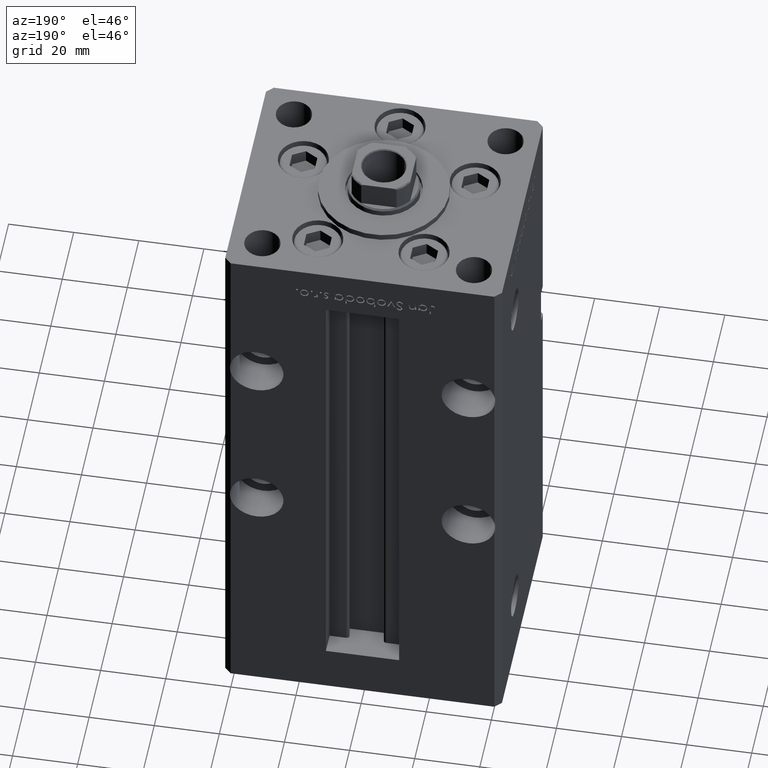
[diagram: clean part render]
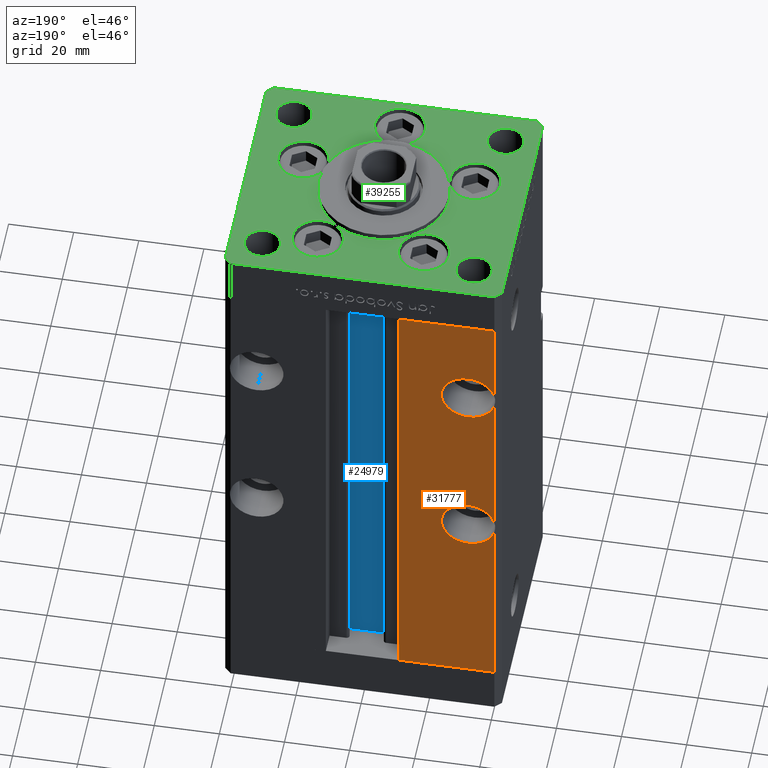
[diagram: same view with three faces highlighted in distinct colors, each labeled with its STEP entity id]
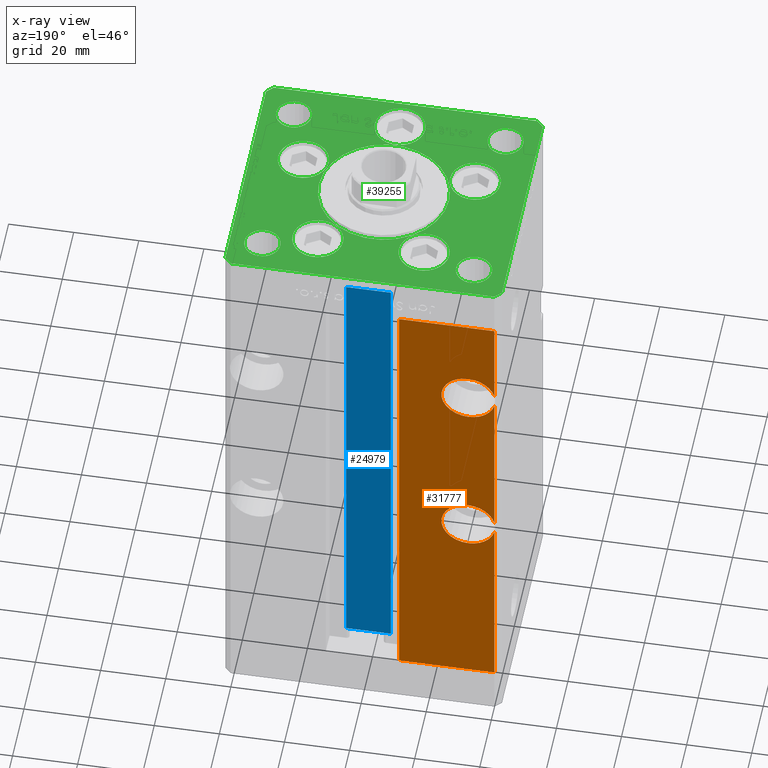
[diagram: x-ray of the same camera — body ghosted, the three highlighted faces saturated]
A machine part, auxiliary view with three faces highlighted in distinct colors.
The next image is the same camera in x-ray (body ghosted, the three faces saturated) — at least one of them is partly hidden behind the body in this view.
Their STEP definitions:

[orange] entity #31777 — the highlighted planar face has unit normal (0, -1, 0).
#46 = EDGE_CURVE ( 'NONE', #51204, #11577, #9133, .T. ) ;
#246 = DIRECTION ( 'NONE',  ( 0.000000000000000000, 1.000000000000000000, -0.000000000000000000 ) ) ;
#531 = CARTESIAN_POINT ( 'NONE',  ( -40.50000000000000711, 37.50000000000000000, 148.5000000000000000 ) ) ;
#666 = CARTESIAN_POINT ( 'NONE',  ( -40.50000000000000711, 37.50000000000000000, 148.5000000000000000 ) ) ;
#714 = DIRECTION ( 'NONE',  ( 0.000000000000000000, 0.000000000000000000, -1.000000000000000000 ) ) ;
#1833 = CARTESIAN_POINT ( 'NONE',  ( -11.24999999999999822, 37.50000000000000000, 148.5000000000000000 ) ) ;
#2019 = CARTESIAN_POINT ( 'NONE',  ( -32.50000000000000000, 37.50000000000000000, 54.75000000000000000 ) ) ;
#2843 = AXIS2_PLACEMENT_3D ( 'NONE', #10056, #42859, #51468 ) ;
#3202 = LINE ( 'NONE', #19625, #5698 ) ;
#4731 = DIRECTION ( 'NONE',  ( 0.000000000000000000, 1.000000000000000000, -0.000000000000000000 ) ) ;
#4918 = AXIS2_PLACEMENT_3D ( 'NONE', #33041, #246, #13138 ) ;
#5417 = EDGE_CURVE ( 'NONE', #24677, #11986, #12433, .T. ) ;
#5698 = VECTOR ( 'NONE', #36017, 1000.000000000000000 ) ;
#6661 = VERTEX_POINT ( 'NONE', #50525 ) ;
#6706 = AXIS2_PLACEMENT_3D ( 'NONE', #16376, #20418, #40299 ) ;
#7335 = VERTEX_POINT ( 'NONE', #2019 ) ;
#8038 = EDGE_CURVE ( 'NONE', #51204, #11986, #3202, .T. ) ;
#8677 = ORIENTED_EDGE ( 'NONE', *, *, #46, .T. ) ;
#8989 = LINE ( 'NONE', #666, #21336 ) ;
#9133 = LINE ( 'NONE', #43800, #37344 ) ;
#9165 = EDGE_CURVE ( 'NONE', #44308, #6661, #34066, .T. ) ;
#10056 = CARTESIAN_POINT ( 'NONE',  ( -32.50000000000000000, 37.50000000000000000, 63.00000000000000000 ) ) ;
#10524 = CARTESIAN_POINT ( 'NONE',  ( -32.50000000000000000, 37.50000000000000000, 63.00000000000000000 ) ) ;
#11577 = VERTEX_POINT ( 'NONE', #20242 ) ;
#11986 = VERTEX_POINT ( 'NONE', #1833 ) ;
#12433 = LINE ( 'NONE', #31803, #39150 ) ;
#13025 = EDGE_CURVE ( 'NONE', #6661, #26795, #21306, .T. ) ;
#13138 = DIRECTION ( 'NONE',  ( 0.000000000000000000, 0.000000000000000000, -1.000000000000000000 ) ) ;
#13165 = DIRECTION ( 'NONE',  ( -0.000000000000000000, -0.000000000000000000, -1.000000000000000000 ) ) ;
#14041 = DIRECTION ( 'NONE',  ( 0.000000000000000000, -1.000000000000000000, 0.000000000000000000 ) ) ;
#15024 = ORIENTED_EDGE ( 'NONE', *, *, #44463, .F. ) ;
#15213 = VERTEX_POINT ( 'NONE', #37541 ) ;
#15315 = DIRECTION ( 'NONE',  ( 0.000000000000000000, 0.000000000000000000, 1.000000000000000000 ) ) ;
#15840 = EDGE_CURVE ( 'NONE', #21188, #11577, #34224, .T. ) ;
#16376 = CARTESIAN_POINT ( 'NONE',  ( -32.50000000000000000, 37.50000000000000000, 118.0000000000000000 ) ) ;
#16639 = ORIENTED_EDGE ( 'NONE', *, *, #52894, .F. ) ;
#18877 = CARTESIAN_POINT ( 'NONE',  ( -32.50000000000000000, 37.50000000000000000, 71.25000000000001421 ) ) ;
#18896 = DIRECTION ( 'NONE',  ( 0.000000000000000000, -0.000000000000000000, -1.000000000000000000 ) ) ;
#19625 = CARTESIAN_POINT ( 'NONE',  ( -11.24999999999999822, 37.50000000000000000, 0.000000000000000000 ) ) ;
#20177 = VECTOR ( 'NONE', #13165, 1000.000000000000000 ) ;
#20242 = CARTESIAN_POINT ( 'NONE',  ( -40.50000000000000711, 37.50000000000000000, 0.000000000000000000 ) ) ;
#20418 = DIRECTION ( 'NONE',  ( 0.000000000000000000, 1.000000000000000000, -0.000000000000000000 ) ) ;
#21188 = VERTEX_POINT ( 'NONE', #29022 ) ;
#21210 = CARTESIAN_POINT ( 'NONE',  ( -40.50000000000000711, 37.50000000000000000, 115.9844355629253840 ) ) ;
#21306 = CIRCLE ( 'NONE', #6706, 8.250000000000007105 ) ;
#21336 = VECTOR ( 'NONE', #49865, 1000.000000000000000 ) ;
#22130 = CIRCLE ( 'NONE', #4918, 8.250000000000007105 ) ;
#22524 = CIRCLE ( 'NONE', #38814, 8.250000000000007105 ) ;
#22942 = CARTESIAN_POINT ( 'NONE',  ( -40.50000000000000711, 37.50000000000000000, 148.5000000000000000 ) ) ;
#23400 = EDGE_CURVE ( 'NONE', #15213, #48276, #37793, .T. ) ;
#23901 = DIRECTION ( 'NONE',  ( -1.000000000000000000, 0.000000000000000000, 0.000000000000000000 ) ) ;
#24677 = VERTEX_POINT ( 'NONE', #28452 ) ;
#25105 = EDGE_CURVE ( 'NONE', #26795, #15213, #8989, .T. ) ;
#26033 = CIRCLE ( 'NONE', #2843, 8.250000000000007105 ) ;
#26387 = DIRECTION ( 'NONE',  ( 0.000000000000000000, 1.000000000000000000, 0.000000000000000000 ) ) ;
#26772 = EDGE_CURVE ( 'NONE', #38711, #44308, #22130, .T. ) ;
#26795 = VERTEX_POINT ( 'NONE', #21210 ) ;
#27969 = ORIENTED_EDGE ( 'NONE', *, *, #23400, .F. ) ;
#28452 = CARTESIAN_POINT ( 'NONE',  ( -40.50000000000000711, 37.50000000000000000, 148.5000000000000000 ) ) ;
#29022 = CARTESIAN_POINT ( 'NONE',  ( -40.50000000000000711, 37.50000000000000000, 60.98443556292539114 ) ) ;
#29327 = CARTESIAN_POINT ( 'NONE',  ( -32.50000000000000000, 37.50000000000000000, 126.2500000000000000 ) ) ;
#30702 = CARTESIAN_POINT ( 'NONE',  ( -11.24999999999999822, 37.50000000000000000, 148.5000000000000000 ) ) ;
#31183 = DIRECTION ( 'NONE',  ( 0.000000000000000000, 1.000000000000000000, 0.000000000000000000 ) ) ;
#31777 = ADVANCED_FACE ( 'NONE', ( #50872 ), #51928, .F. ) ;
#31803 = CARTESIAN_POINT ( 'NONE',  ( -11.24999999999999822, 37.50000000000000000, 148.5000000000000000 ) ) ;
#33041 = CARTESIAN_POINT ( 'NONE',  ( -32.50000000000000000, 37.50000000000000000, 118.0000000000000000 ) ) ;
#33197 = ORIENTED_EDGE ( 'NONE', *, *, #5417, .T. ) ;
#34066 = CIRCLE ( 'NONE', #40060, 8.250000000000007105 ) ;
#34224 = LINE ( 'NONE', #22942, #47174 ) ;
#34922 = ORIENTED_EDGE ( 'NONE', *, *, #26772, .F. ) ;
#36017 = DIRECTION ( 'NONE',  ( -0.000000000000000000, -0.000000000000000000, 1.000000000000000000 ) ) ;
#37344 = VECTOR ( 'NONE', #23901, 1000.000000000000000 ) ;
#37541 = CARTESIAN_POINT ( 'NONE',  ( -40.50000000000000711, 37.50000000000000000, 65.01556443707461597 ) ) ;
#37793 = CIRCLE ( 'NONE', #39526, 8.250000000000007105 ) ;
#38711 = VERTEX_POINT ( 'NONE', #48286 ) ;
#38814 = AXIS2_PLACEMENT_3D ( 'NONE', #48106, #31183, #15315 ) ;
#39150 = VECTOR ( 'NONE', #43897, 1000.000000000000000 ) ;
#39526 = AXIS2_PLACEMENT_3D ( 'NONE', #10524, #26387, #42774 ) ;
#39842 = ORIENTED_EDGE ( 'NONE', *, *, #13025, .F. ) ;
#40060 = AXIS2_PLACEMENT_3D ( 'NONE', #49117, #4731, #714 ) ;
#40299 = DIRECTION ( 'NONE',  ( 0.000000000000000000, 0.000000000000000000, -1.000000000000000000 ) ) ;
#40320 = CARTESIAN_POINT ( 'NONE',  ( -11.24999999999999822, 37.50000000000000000, 0.000000000000000000 ) ) ;
#41660 = LINE ( 'NONE', #531, #20177 ) ;
#42774 = DIRECTION ( 'NONE',  ( 0.000000000000000000, 0.000000000000000000, 1.000000000000000000 ) ) ;
#42859 = DIRECTION ( 'NONE',  ( 0.000000000000000000, 1.000000000000000000, 0.000000000000000000 ) ) ;
#43800 = CARTESIAN_POINT ( 'NONE',  ( -11.24999999999999822, 37.50000000000000000, 0.000000000000000000 ) ) ;
#43897 = DIRECTION ( 'NONE',  ( 1.000000000000000000, 0.000000000000000000, 0.000000000000000000 ) ) ;
#44308 = VERTEX_POINT ( 'NONE', #29327 ) ;
#44463 = EDGE_CURVE ( 'NONE', #7335, #21188, #22524, .T. ) ;
#44714 = ORIENTED_EDGE ( 'NONE', *, *, #25105, .F. ) ;
#45689 = ORIENTED_EDGE ( 'NONE', *, *, #8038, .F. ) ;
#47174 = VECTOR ( 'NONE', #51700, 1000.000000000000000 ) ;
#47569 = EDGE_LOOP ( 'NONE', ( #44714, #39842, #48673, #34922, #16639, #33197, #45689, #8677, #50925, #15024, #52550, #27969 ) ) ;
#48106 = CARTESIAN_POINT ( 'NONE',  ( -32.50000000000000000, 37.50000000000000000, 63.00000000000000000 ) ) ;
#48276 = VERTEX_POINT ( 'NONE', #18877 ) ;
#48286 = CARTESIAN_POINT ( 'NONE',  ( -40.50000000000000711, 37.50000000000000000, 120.0155644370746018 ) ) ;
#48673 = ORIENTED_EDGE ( 'NONE', *, *, #9165, .F. ) ;
#48902 = EDGE_CURVE ( 'NONE', #48276, #7335, #26033, .T. ) ;
#49117 = CARTESIAN_POINT ( 'NONE',  ( -32.50000000000000000, 37.50000000000000000, 118.0000000000000000 ) ) ;
#49865 = DIRECTION ( 'NONE',  ( -0.000000000000000000, -0.000000000000000000, -1.000000000000000000 ) ) ;
#50525 = CARTESIAN_POINT ( 'NONE',  ( -32.50000000000000000, 37.50000000000000000, 109.7499999999999858 ) ) ;
#50872 = FACE_OUTER_BOUND ( 'NONE', #47569, .T. ) ;
#50925 = ORIENTED_EDGE ( 'NONE', *, *, #15840, .F. ) ;
#51204 = VERTEX_POINT ( 'NONE', #40320 ) ;
#51468 = DIRECTION ( 'NONE',  ( 0.000000000000000000, 0.000000000000000000, 1.000000000000000000 ) ) ;
#51700 = DIRECTION ( 'NONE',  ( -0.000000000000000000, -0.000000000000000000, -1.000000000000000000 ) ) ;
#51928 = PLANE ( 'NONE',  #52276 ) ;
#52276 = AXIS2_PLACEMENT_3D ( 'NONE', #30702, #14041, #18896 ) ;
#52550 = ORIENTED_EDGE ( 'NONE', *, *, #48902, .F. ) ;
#52894 = EDGE_CURVE ( 'NONE', #24677, #38711, #41660, .T. ) ;

[blue] entity #24979 — the highlighted planar face has unit normal (0, -1, 0).
#9 = CARTESIAN_POINT ( 'NONE',  ( 6.876153656360465938, 26.99999999999986855, 148.5000000000000000 ) ) ;
#5331 = VECTOR ( 'NONE', #11118, 1000.000000000000000 ) ;
#5333 = CARTESIAN_POINT ( 'NONE',  ( -6.876153656360465938, 26.99999999999986855, 148.5000000000000000 ) ) ;
#5457 = DIRECTION ( 'NONE',  ( 1.000000000000000000, -0.000000000000000000, -0.000000000000000000 ) ) ;
#5744 = VERTEX_POINT ( 'NONE', #9 ) ;
#5973 = EDGE_LOOP ( 'NONE', ( #11909, #11796, #50272, #10671 ) ) ;
#10671 = ORIENTED_EDGE ( 'NONE', *, *, #23046, .F. ) ;
#10858 = LINE ( 'NONE', #24227, #5331 ) ;
#11118 = DIRECTION ( 'NONE',  ( -0.000000000000000000, -0.000000000000000000, 1.000000000000000000 ) ) ;
#11796 = ORIENTED_EDGE ( 'NONE', *, *, #21057, .F. ) ;
#11909 = ORIENTED_EDGE ( 'NONE', *, *, #24004, .F. ) ;
#12388 = CARTESIAN_POINT ( 'NONE',  ( 0.000000000000000000, 26.99999999999986855, 148.5000000000000000 ) ) ;
#12487 = CARTESIAN_POINT ( 'NONE',  ( 6.876153656360465938, 26.99999999999986855, 0.000000000000000000 ) ) ;
#13243 = VERTEX_POINT ( 'NONE', #45656 ) ;
#13769 = VECTOR ( 'NONE', #40358, 1000.000000000000000 ) ;
#16289 = CARTESIAN_POINT ( 'NONE',  ( 6.876153656360465938, 26.99999999999986855, 0.000000000000000000 ) ) ;
#16631 = CARTESIAN_POINT ( 'NONE',  ( 6.876153656360465938, 26.99999999999986855, 0.000000000000000000 ) ) ;
#18230 = VECTOR ( 'NONE', #36434, 1000.000000000000000 ) ;
#19504 = LINE ( 'NONE', #40466, #18230 ) ;
#19611 = AXIS2_PLACEMENT_3D ( 'NONE', #16289, #31878, #40476 ) ;
#21057 = EDGE_CURVE ( 'NONE', #13243, #49340, #49319, .T. ) ;
#21322 = VERTEX_POINT ( 'NONE', #5333 ) ;
#23046 = EDGE_CURVE ( 'NONE', #5744, #21322, #28530, .T. ) ;
#24004 = EDGE_CURVE ( 'NONE', #49340, #5744, #19504, .T. ) ;
#24227 = CARTESIAN_POINT ( 'NONE',  ( -6.876153656360465938, 26.99999999999986855, 0.000000000000000000 ) ) ;
#24979 = ADVANCED_FACE ( 'NONE', ( #43717 ), #44231, .F. ) ;
#28530 = LINE ( 'NONE', #12388, #13769 ) ;
#31878 = DIRECTION ( 'NONE',  ( 0.000000000000000000, -1.000000000000000000, -0.000000000000000000 ) ) ;
#36434 = DIRECTION ( 'NONE',  ( -0.000000000000000000, -0.000000000000000000, 1.000000000000000000 ) ) ;
#40358 = DIRECTION ( 'NONE',  ( -1.000000000000000000, 0.000000000000000000, 0.000000000000000000 ) ) ;
#40466 = CARTESIAN_POINT ( 'NONE',  ( 6.876153656360465938, 26.99999999999986855, 0.000000000000000000 ) ) ;
#40476 = DIRECTION ( 'NONE',  ( 0.000000000000000000, 0.000000000000000000, -1.000000000000000000 ) ) ;
#42032 = EDGE_CURVE ( 'NONE', #13243, #21322, #10858, .T. ) ;
#43717 = FACE_OUTER_BOUND ( 'NONE', #5973, .T. ) ;
#43736 = VECTOR ( 'NONE', #5457, 1000.000000000000000 ) ;
#44231 = PLANE ( 'NONE',  #19611 ) ;
#45656 = CARTESIAN_POINT ( 'NONE',  ( -6.876153656360465938, 26.99999999999986855, 0.000000000000000000 ) ) ;
#49319 = LINE ( 'NONE', #12487, #43736 ) ;
#49340 = VERTEX_POINT ( 'NONE', #16631 ) ;
#50272 = ORIENTED_EDGE ( 'NONE', *, *, #42032, .T. ) ;

[green] entity #39255 — the highlighted planar face has unit normal (0, 0, 1).
#355 = VECTOR ( 'NONE', #21543, 1000.000000000000000 ) ;
#453 = DIRECTION ( 'NONE',  ( 0.000000000000000000, 0.000000000000000000, 1.000000000000000000 ) ) ;
#563 = CARTESIAN_POINT ( 'NONE',  ( -26.39865316429777664, -9.333333333333330373, 0.000000000000000000 ) ) ;
#712 = DIRECTION ( 'NONE',  ( -0.000000000000000000, -0.000000000000000000, -1.000000000000000000 ) ) ;
#935 = ORIENTED_EDGE ( 'NONE', *, *, #14604, .F. ) ;
#1248 = ORIENTED_EDGE ( 'NONE', *, *, #10887, .T. ) ;
#1296 = EDGE_CURVE ( 'NONE', #1779, #6968, #25373, .T. ) ;
#1409 = CARTESIAN_POINT ( 'NONE',  ( -38.00000000000000000, -27.50000000000000355, 0.000000000000000000 ) ) ;
#1435 = DIRECTION ( 'NONE',  ( -0.7071067811865524577, 0.7071067811865426878, 0.000000000000000000 ) ) ;
#1553 = VECTOR ( 'NONE', #6154, 1000.000000000000114 ) ;
#1779 = VERTEX_POINT ( 'NONE', #15584 ) ;
#1946 = FACE_BOUND ( 'NONE', #7224, .T. ) ;
#2238 = ORIENTED_EDGE ( 'NONE', *, *, #47735, .F. ) ;
#2451 = ORIENTED_EDGE ( 'NONE', *, *, #44950, .T. ) ;
#2939 = EDGE_CURVE ( 'NONE', #31761, #44497, #39073, .T. ) ;
#2953 = CIRCLE ( 'NONE', #48477, 7.750000000000000000 ) ;
#3042 = VERTEX_POINT ( 'NONE', #40885 ) ;
#4089 = CARTESIAN_POINT ( 'NONE',  ( -18.64865316429777664, -9.333333333333330373, 0.000000000000000000 ) ) ;
#4127 = CARTESIAN_POINT ( 'NONE',  ( 18.64865316429777664, -9.333333333333328596, 0.000000000000000000 ) ) ;
#4424 = ORIENTED_EDGE ( 'NONE', *, *, #39615, .T. ) ;
#4457 = AXIS2_PLACEMENT_3D ( 'NONE', #17500, #50545, #26634 ) ;
#4460 = CIRCLE ( 'NONE', #51688, 5.499999999999998224 ) ;
#5371 = ORIENTED_EDGE ( 'NONE', *, *, #33656, .F. ) ;
#5407 = VERTEX_POINT ( 'NONE', #4089 ) ;
#5645 = CARTESIAN_POINT ( 'NONE',  ( 7.750000000000000000, -28.00000000000000000, 0.000000000000000000 ) ) ;
#5729 = CARTESIAN_POINT ( 'NONE',  ( 42.50000000000001421, 35.50000000000002132, 0.000000000000000000 ) ) ;
#5739 = ORIENTED_EDGE ( 'NONE', *, *, #44399, .F. ) ;
#6048 = EDGE_CURVE ( 'NONE', #31823, #3042, #10984, .T. ) ;
#6154 = DIRECTION ( 'NONE',  ( 0.7071067811865474617, 0.7071067811865474617, 0.000000000000000000 ) ) ;
#6244 = CARTESIAN_POINT ( 'NONE',  ( -7.750000000000000000, -28.00000000000000000, 0.000000000000000000 ) ) ;
#6756 = EDGE_LOOP ( 'NONE', ( #40136, #935 ) ) ;
#6968 = VERTEX_POINT ( 'NONE', #31095 ) ;
#7153 = VERTEX_POINT ( 'NONE', #52569 ) ;
#7224 = EDGE_LOOP ( 'NONE', ( #10716, #49525 ) ) ;
#7500 = VECTOR ( 'NONE', #18312, 1000.000000000000000 ) ;
#7558 = VERTEX_POINT ( 'NONE', #37990 ) ;
#8409 = ORIENTED_EDGE ( 'NONE', *, *, #42141, .F. ) ;
#8418 = CARTESIAN_POINT ( 'NONE',  ( 24.07291334290544071, 22.74999999999999289, 0.000000000000000000 ) ) ;
#9037 = AXIS2_PLACEMENT_3D ( 'NONE', #49099, #28404, #44793 ) ;
#9179 = CARTESIAN_POINT ( 'NONE',  ( 42.50000000000001421, 35.50000000000002132, 0.000000000000000000 ) ) ;
#9658 = DIRECTION ( 'NONE',  ( 0.000000000000000000, 0.000000000000000000, 1.000000000000000000 ) ) ;
#9678 = AXIS2_PLACEMENT_3D ( 'NONE', #21168, #453, #29484 ) ;
#9874 = ORIENTED_EDGE ( 'NONE', *, *, #43678, .T. ) ;
#10062 = DIRECTION ( 'NONE',  ( -0.000000000000000000, -0.000000000000000000, -1.000000000000000000 ) ) ;
#10432 = LINE ( 'NONE', #13921, #23361 ) ;
#10479 = VERTEX_POINT ( 'NONE', #4127 ) ;
#10509 = VECTOR ( 'NONE', #1435, 1000.000000000000000 ) ;
#10716 = ORIENTED_EDGE ( 'NONE', *, *, #14500, .F. ) ;
#10887 = EDGE_CURVE ( 'NONE', #40882, #23834, #38457, .T. ) ;
#10984 = LINE ( 'NONE', #27392, #48572 ) ;
#11075 = DIRECTION ( 'NONE',  ( -0.000000000000000000, 0.000000000000000000, 1.000000000000000000 ) ) ;
#11207 = CARTESIAN_POINT ( 'NONE',  ( -16.32291334290544071, 22.74999999999999289, 0.000000000000000000 ) ) ;
#11581 = EDGE_CURVE ( 'NONE', #29237, #7153, #27288, .T. ) ;
#11890 = DIRECTION ( 'NONE',  ( 1.000000000000000000, 0.000000000000000000, 0.000000000000000000 ) ) ;
#12182 = EDGE_CURVE ( 'NONE', #16742, #10479, #18744, .T. ) ;
#12255 = ORIENTED_EDGE ( 'NONE', *, *, #50198, .F. ) ;
#13103 = ORIENTED_EDGE ( 'NONE', *, *, #20701, .T. ) ;
#13184 = LINE ( 'NONE', #29835, #25046 ) ;
#13560 = VERTEX_POINT ( 'NONE', #6244 ) ;
#13921 = CARTESIAN_POINT ( 'NONE',  ( 42.50000000000000711, -35.49999999999992895, 0.000000000000000000 ) ) ;
#13945 = CIRCLE ( 'NONE', #29298, 5.499999999999998224 ) ;
#14194 = DIRECTION ( 'NONE',  ( 9.773090005503145261E-17, 1.000000000000000000, 0.000000000000000000 ) ) ;
#14500 = EDGE_CURVE ( 'NONE', #5407, #18947, #29960, .T. ) ;
#14507 = LINE ( 'NONE', #31424, #1553 ) ;
#14591 = FACE_BOUND ( 'NONE', #50360, .T. ) ;
#14604 = EDGE_CURVE ( 'NONE', #10479, #16742, #38562, .T. ) ;
#14855 = FACE_BOUND ( 'NONE', #48680, .T. ) ;
#14954 = VERTEX_POINT ( 'NONE', #51566 ) ;
#15539 = CARTESIAN_POINT ( 'NONE',  ( -8.572913342905440715, 22.74999999999999289, 0.000000000000000000 ) ) ;
#15584 = CARTESIAN_POINT ( 'NONE',  ( -38.00000000000000000, 27.50000000000000711, 0.000000000000000000 ) ) ;
#16046 = CARTESIAN_POINT ( 'NONE',  ( 0.000000000000000000, -28.00000000000000000, 0.000000000000000000 ) ) ;
#16211 = CARTESIAN_POINT ( 'NONE',  ( -42.50000000000000000, -35.50000000000004263, 0.000000000000000000 ) ) ;
#16477 = CARTESIAN_POINT ( 'NONE',  ( 16.32291334290544071, 22.74999999999999289, 0.000000000000000000 ) ) ;
#16506 = DIRECTION ( 'NONE',  ( 0.000000000000000000, 0.000000000000000000, 1.000000000000000000 ) ) ;
#16742 = VERTEX_POINT ( 'NONE', #17648 ) ;
#16846 = DIRECTION ( 'NONE',  ( 1.000000000000000000, 0.000000000000000000, 0.000000000000000000 ) ) ;
#17336 = AXIS2_PLACEMENT_3D ( 'NONE', #43606, #11075, #27486 ) ;
#17362 = CARTESIAN_POINT ( 'NONE',  ( 40.50000000000001421, -37.49999999999992184, 0.000000000000000000 ) ) ;
#17460 = ORIENTED_EDGE ( 'NONE', *, *, #33419, .F. ) ;
#17500 = CARTESIAN_POINT ( 'NONE',  ( 0.000000000000000000, -6.938893903907228378E-15, 0.000000000000000000 ) ) ;
#17509 = CARTESIAN_POINT ( 'NONE',  ( 27.00000000000000355, 27.49999999999999645, 0.000000000000000000 ) ) ;
#17648 = CARTESIAN_POINT ( 'NONE',  ( 34.14865316429777664, -9.333333333333330373, 0.000000000000000000 ) ) ;
#17660 = VERTEX_POINT ( 'NONE', #48789 ) ;
#17947 = ORIENTED_EDGE ( 'NONE', *, *, #45191, .F. ) ;
#18033 = AXIS2_PLACEMENT_3D ( 'NONE', #33627, #50018, #31449 ) ;
#18263 = CIRCLE ( 'NONE', #49149, 5.499999999999998224 ) ;
#18312 = DIRECTION ( 'NONE',  ( 0.7071067811865487940, -0.7071067811865463515, 0.000000000000000000 ) ) ;
#18621 = CARTESIAN_POINT ( 'NONE',  ( 38.00000000000000000, -27.50000000000000355, 0.000000000000000000 ) ) ;
#18744 = CIRCLE ( 'NONE', #41054, 7.750000000000000000 ) ;
#18819 = AXIS2_PLACEMENT_3D ( 'NONE', #44743, #28355, #28084 ) ;
#18903 = FACE_BOUND ( 'NONE', #32809, .T. ) ;
#18947 = VERTEX_POINT ( 'NONE', #33921 ) ;
#20002 = VERTEX_POINT ( 'NONE', #8418 ) ;
#20215 = ORIENTED_EDGE ( 'NONE', *, *, #24567, .T. ) ;
#20356 = DIRECTION ( 'NONE',  ( 0.000000000000000000, 0.000000000000000000, 1.000000000000000000 ) ) ;
#20701 = EDGE_CURVE ( 'NONE', #6968, #1779, #22259, .T. ) ;
#20816 = DIRECTION ( 'NONE',  ( 1.000000000000000000, 0.000000000000000000, 0.000000000000000000 ) ) ;
#21168 = CARTESIAN_POINT ( 'NONE',  ( 0.000000000000000000, -28.00000000000000000, 0.000000000000000000 ) ) ;
#21435 = CARTESIAN_POINT ( 'NONE',  ( -32.50000000000000000, -27.50000000000000355, 0.000000000000000000 ) ) ;
#21543 = DIRECTION ( 'NONE',  ( 9.773090005503134168E-17, -1.000000000000000000, 0.000000000000000000 ) ) ;
#21620 = AXIS2_PLACEMENT_3D ( 'NONE', #16046, #20356, #16846 ) ;
#22259 = CIRCLE ( 'NONE', #31691, 5.499999999999998224 ) ;
#23261 = DIRECTION ( 'NONE',  ( 0.000000000000000000, 0.000000000000000000, 1.000000000000000000 ) ) ;
#23320 = VECTOR ( 'NONE', #36416, 1000.000000000000000 ) ;
#23361 = VECTOR ( 'NONE', #14194, 1000.000000000000000 ) ;
#23834 = VERTEX_POINT ( 'NONE', #45631 ) ;
#23951 = AXIS2_PLACEMENT_3D ( 'NONE', #46529, #42749, #42220 ) ;
#24562 = EDGE_LOOP ( 'NONE', ( #17460, #12255 ) ) ;
#24567 = EDGE_CURVE ( 'NONE', #38883, #34466, #14507, .T. ) ;
#24719 = AXIS2_PLACEMENT_3D ( 'NONE', #28823, #48991, #11890 ) ;
#24926 = DIRECTION ( 'NONE',  ( -1.000000000000000000, 0.000000000000000000, 0.000000000000000000 ) ) ;
#25046 = VECTOR ( 'NONE', #25816, 1000.000000000000000 ) ;
#25057 = CARTESIAN_POINT ( 'NONE',  ( -42.50000000000000711, 35.50000000000000000, 0.000000000000000000 ) ) ;
#25193 = CIRCLE ( 'NONE', #32051, 7.750000000000000000 ) ;
#25373 = CIRCLE ( 'NONE', #9037, 5.499999999999998224 ) ;
#25816 = DIRECTION ( 'NONE',  ( 1.000000000000000000, 1.370645709413773283E-15, 0.000000000000000000 ) ) ;
#26549 = VERTEX_POINT ( 'NONE', #17509 ) ;
#26610 = VERTEX_POINT ( 'NONE', #5645 ) ;
#26634 = DIRECTION ( 'NONE',  ( 1.000000000000000000, 0.000000000000000000, 0.000000000000000000 ) ) ;
#27223 = FACE_BOUND ( 'NONE', #41634, .T. ) ;
#27288 = CIRCLE ( 'NONE', #24719, 5.499999999999998224 ) ;
#27392 = CARTESIAN_POINT ( 'NONE',  ( 40.50000000000000711, 37.50000000000000711, 0.000000000000000000 ) ) ;
#27486 = DIRECTION ( 'NONE',  ( 1.000000000000000000, 0.000000000000000000, 0.000000000000000000 ) ) ;
#27614 = DIRECTION ( 'NONE',  ( 1.000000000000000000, 0.000000000000000000, 0.000000000000000000 ) ) ;
#27732 = CARTESIAN_POINT ( 'NONE',  ( 32.50000000000000000, -27.50000000000000355, 0.000000000000000000 ) ) ;
#27780 = DIRECTION ( 'NONE',  ( 0.000000000000000000, 0.000000000000000000, 1.000000000000000000 ) ) ;
#28084 = DIRECTION ( 'NONE',  ( 1.000000000000000000, 0.000000000000000000, 0.000000000000000000 ) ) ;
#28355 = DIRECTION ( 'NONE',  ( 0.000000000000000000, 0.000000000000000000, 1.000000000000000000 ) ) ;
#28404 = DIRECTION ( 'NONE',  ( -0.000000000000000000, -0.000000000000000000, -1.000000000000000000 ) ) ;
#28434 = ORIENTED_EDGE ( 'NONE', *, *, #1296, .T. ) ;
#28643 = CIRCLE ( 'NONE', #30369, 7.750000000000000000 ) ;
#28823 = CARTESIAN_POINT ( 'NONE',  ( -32.50000000000000000, -27.50000000000000355, 0.000000000000000000 ) ) ;
#29041 = DIRECTION ( 'NONE',  ( 1.000000000000000000, 0.000000000000000000, 0.000000000000000000 ) ) ;
#29237 = VERTEX_POINT ( 'NONE', #1409 ) ;
#29298 = AXIS2_PLACEMENT_3D ( 'NONE', #45705, #9658, #29041 ) ;
#29474 = CARTESIAN_POINT ( 'NONE',  ( -32.50000000000000000, 27.50000000000000711, 0.000000000000000000 ) ) ;
#29484 = DIRECTION ( 'NONE',  ( 1.000000000000000000, 0.000000000000000000, 0.000000000000000000 ) ) ;
#29595 = CARTESIAN_POINT ( 'NONE',  ( 42.50000000000000711, -35.49999999999992895, 0.000000000000000000 ) ) ;
#29607 = DIRECTION ( 'NONE',  ( -0.000000000000000000, -0.000000000000000000, -1.000000000000000000 ) ) ;
#29835 = CARTESIAN_POINT ( 'NONE',  ( -40.50000000000000711, -37.50000000000003553, 0.000000000000000000 ) ) ;
#29960 = CIRCLE ( 'NONE', #45439, 7.750000000000000000 ) ;
#30053 = CARTESIAN_POINT ( 'NONE',  ( -24.07291334290544071, 22.74999999999999289, 0.000000000000000000 ) ) ;
#30369 = AXIS2_PLACEMENT_3D ( 'NONE', #46039, #16506, #20816 ) ;
#30769 = EDGE_LOOP ( 'NONE', ( #13103, #28434 ) ) ;
#30779 = ORIENTED_EDGE ( 'NONE', *, *, #41494, .F. ) ;
#31003 = EDGE_CURVE ( 'NONE', #26549, #7558, #53124, .T. ) ;
#31095 = CARTESIAN_POINT ( 'NONE',  ( -27.00000000000000355, 27.50000000000000711, 0.000000000000000000 ) ) ;
#31313 = AXIS2_PLACEMENT_3D ( 'NONE', #27732, #10062, #44115 ) ;
#31424 = CARTESIAN_POINT ( 'NONE',  ( 40.50000000000001421, -37.49999999999992184, 0.000000000000000000 ) ) ;
#31445 = CARTESIAN_POINT ( 'NONE',  ( 27.00000000000000355, -27.50000000000000355, 0.000000000000000000 ) ) ;
#31449 = DIRECTION ( 'NONE',  ( 1.000000000000000000, 0.000000000000000000, 0.000000000000000000 ) ) ;
#31500 = CARTESIAN_POINT ( 'NONE',  ( 40.50000000000000711, 37.50000000000000711, 0.000000000000000000 ) ) ;
#31691 = AXIS2_PLACEMENT_3D ( 'NONE', #29474, #712, #24926 ) ;
#31761 = VERTEX_POINT ( 'NONE', #18621 ) ;
#31823 = VERTEX_POINT ( 'NONE', #31500 ) ;
#32051 = AXIS2_PLACEMENT_3D ( 'NONE', #35053, #27780, #39619 ) ;
#32350 = ORIENTED_EDGE ( 'NONE', *, *, #47909, .F. ) ;
#32534 = DIRECTION ( 'NONE',  ( 1.000000000000000000, 0.000000000000000000, 0.000000000000000000 ) ) ;
#32728 = ORIENTED_EDGE ( 'NONE', *, *, #2939, .T. ) ;
#32809 = EDGE_LOOP ( 'NONE', ( #8409, #44777 ) ) ;
#33317 = CARTESIAN_POINT ( 'NONE',  ( -26.39865316429777664, -9.333333333333330373, 0.000000000000000000 ) ) ;
#33419 = EDGE_CURVE ( 'NONE', #47699, #33861, #47199, .T. ) ;
#33627 = CARTESIAN_POINT ( 'NONE',  ( 0.000000000000000000, -6.938893903907228378E-15, 0.000000000000000000 ) ) ;
#33628 = CIRCLE ( 'NONE', #4457, 20.00000000000000000 ) ;
#33656 = EDGE_CURVE ( 'NONE', #43845, #14954, #42036, .T. ) ;
#33861 = VERTEX_POINT ( 'NONE', #30053 ) ;
#33921 = CARTESIAN_POINT ( 'NONE',  ( -34.14865316429777664, -9.333333333333328596, 0.000000000000000000 ) ) ;
#34466 = VERTEX_POINT ( 'NONE', #29595 ) ;
#35053 = CARTESIAN_POINT ( 'NONE',  ( 16.32291334290544071, 22.74999999999999289, 0.000000000000000000 ) ) ;
#35159 = EDGE_LOOP ( 'NONE', ( #1248, #9874, #20215, #2451, #50167, #41648, #4424, #36685 ) ) ;
#35297 = FACE_BOUND ( 'NONE', #24562, .T. ) ;
#35546 = EDGE_CURVE ( 'NONE', #18947, #5407, #47277, .T. ) ;
#35842 = EDGE_LOOP ( 'NONE', ( #41471, #32350 ) ) ;
#36152 = CARTESIAN_POINT ( 'NONE',  ( -40.50000000000000000, 37.49999999999997158, 0.000000000000000000 ) ) ;
#36416 = DIRECTION ( 'NONE',  ( -0.7071067811865536790, -0.7071067811865414665, 0.000000000000000000 ) ) ;
#36685 = ORIENTED_EDGE ( 'NONE', *, *, #50964, .T. ) ;
#37135 = VERTEX_POINT ( 'NONE', #9179 ) ;
#37171 = CARTESIAN_POINT ( 'NONE',  ( 32.50000000000000000, -27.50000000000000355, 0.000000000000000000 ) ) ;
#37825 = DIRECTION ( 'NONE',  ( 0.000000000000000000, 0.000000000000000000, 1.000000000000000000 ) ) ;
#37990 = CARTESIAN_POINT ( 'NONE',  ( 38.00000000000000000, 27.49999999999999645, 0.000000000000000000 ) ) ;
#38189 = CARTESIAN_POINT ( 'NONE',  ( -42.50000000000000000, -35.50000000000004263, 0.000000000000000000 ) ) ;
#38457 = LINE ( 'NONE', #38189, #7500 ) ;
#38562 = CIRCLE ( 'NONE', #23951, 7.750000000000000000 ) ;
#38883 = VERTEX_POINT ( 'NONE', #17362 ) ;
#38897 = CIRCLE ( 'NONE', #9678, 7.750000000000000000 ) ;
#39073 = CIRCLE ( 'NONE', #31313, 5.499999999999998224 ) ;
#39255 = ADVANCED_FACE ( 'NONE', ( #27223, #35297, #47902, #42807, #14855, #1946, #52192, #18903, #14591, #43341, #48169 ), #39841, .T. ) ;
#39522 = AXIS2_PLACEMENT_3D ( 'NONE', #33317, #49710, #32534 ) ;
#39615 = EDGE_CURVE ( 'NONE', #3042, #17660, #40974, .T. ) ;
#39619 = DIRECTION ( 'NONE',  ( 1.000000000000000000, 0.000000000000000000, 0.000000000000000000 ) ) ;
#39651 = DIRECTION ( 'NONE',  ( 1.000000000000000000, 0.000000000000000000, 0.000000000000000000 ) ) ;
#39841 = PLANE ( 'NONE',  #17336 ) ;
#40136 = ORIENTED_EDGE ( 'NONE', *, *, #12182, .F. ) ;
#40641 = EDGE_CURVE ( 'NONE', #37135, #31823, #45084, .T. ) ;
#40882 = VERTEX_POINT ( 'NONE', #16211 ) ;
#40885 = CARTESIAN_POINT ( 'NONE',  ( -40.50000000000000000, 37.49999999999997158, 0.000000000000000000 ) ) ;
#40974 = LINE ( 'NONE', #36152, #23320 ) ;
#40998 = EDGE_CURVE ( 'NONE', #44497, #31761, #4460, .T. ) ;
#41054 = AXIS2_PLACEMENT_3D ( 'NONE', #41319, #44282, #49384 ) ;
#41319 = CARTESIAN_POINT ( 'NONE',  ( 26.39865316429777664, -9.333333333333330373, 0.000000000000000000 ) ) ;
#41471 = ORIENTED_EDGE ( 'NONE', *, *, #51809, .F. ) ;
#41494 = EDGE_CURVE ( 'NONE', #7153, #29237, #18263, .T. ) ;
#41634 = EDGE_LOOP ( 'NONE', ( #5371, #5739 ) ) ;
#41648 = ORIENTED_EDGE ( 'NONE', *, *, #6048, .T. ) ;
#41739 = VERTEX_POINT ( 'NONE', #48266 ) ;
#41967 = LINE ( 'NONE', #25057, #355 ) ;
#42036 = CIRCLE ( 'NONE', #18033, 20.00000000000000000 ) ;
#42141 = EDGE_CURVE ( 'NONE', #7558, #26549, #13945, .T. ) ;
#42220 = DIRECTION ( 'NONE',  ( 1.000000000000000000, 0.000000000000000000, 0.000000000000000000 ) ) ;
#42749 = DIRECTION ( 'NONE',  ( 0.000000000000000000, 0.000000000000000000, 1.000000000000000000 ) ) ;
#42807 = FACE_BOUND ( 'NONE', #6756, .T. ) ;
#43341 = FACE_OUTER_BOUND ( 'NONE', #35159, .T. ) ;
#43606 = CARTESIAN_POINT ( 'NONE',  ( 0.000000000000000000, 0.000000000000000000, 0.000000000000000000 ) ) ;
#43678 = EDGE_CURVE ( 'NONE', #23834, #38883, #13184, .T. ) ;
#43767 = AXIS2_PLACEMENT_3D ( 'NONE', #11207, #44527, #27614 ) ;
#43778 = DIRECTION ( 'NONE',  ( -1.000000000000000000, -4.283267841918041508E-16, 0.000000000000000000 ) ) ;
#43845 = VERTEX_POINT ( 'NONE', #49882 ) ;
#44115 = DIRECTION ( 'NONE',  ( -1.000000000000000000, 0.000000000000000000, 0.000000000000000000 ) ) ;
#44282 = DIRECTION ( 'NONE',  ( 0.000000000000000000, 0.000000000000000000, 1.000000000000000000 ) ) ;
#44399 = EDGE_CURVE ( 'NONE', #14954, #43845, #33628, .T. ) ;
#44497 = VERTEX_POINT ( 'NONE', #31445 ) ;
#44527 = DIRECTION ( 'NONE',  ( 0.000000000000000000, 0.000000000000000000, 1.000000000000000000 ) ) ;
#44743 = CARTESIAN_POINT ( 'NONE',  ( 32.50000000000000000, 27.49999999999999645, 0.000000000000000000 ) ) ;
#44777 = ORIENTED_EDGE ( 'NONE', *, *, #31003, .F. ) ;
#44793 = DIRECTION ( 'NONE',  ( -1.000000000000000000, 0.000000000000000000, 0.000000000000000000 ) ) ;
#44794 = CIRCLE ( 'NONE', #21620, 7.750000000000000000 ) ;
#44950 = EDGE_CURVE ( 'NONE', #34466, #37135, #10432, .T. ) ;
#45084 = LINE ( 'NONE', #5729, #10509 ) ;
#45099 = DIRECTION ( 'NONE',  ( 1.000000000000000000, 0.000000000000000000, 0.000000000000000000 ) ) ;
#45153 = ORIENTED_EDGE ( 'NONE', *, *, #11581, .F. ) ;
#45191 = EDGE_CURVE ( 'NONE', #26610, #13560, #44794, .T. ) ;
#45224 = DIRECTION ( 'NONE',  ( 1.000000000000000000, 0.000000000000000000, 0.000000000000000000 ) ) ;
#45439 = AXIS2_PLACEMENT_3D ( 'NONE', #563, #23261, #39651 ) ;
#45631 = CARTESIAN_POINT ( 'NONE',  ( -40.50000000000000711, -37.50000000000003553, 0.000000000000000000 ) ) ;
#45705 = CARTESIAN_POINT ( 'NONE',  ( 32.50000000000000000, 27.49999999999999645, 0.000000000000000000 ) ) ;
#46012 = DIRECTION ( 'NONE',  ( -1.000000000000000000, 0.000000000000000000, 0.000000000000000000 ) ) ;
#46039 = CARTESIAN_POINT ( 'NONE',  ( -16.32291334290544071, 22.74999999999999289, 0.000000000000000000 ) ) ;
#46529 = CARTESIAN_POINT ( 'NONE',  ( 26.39865316429777664, -9.333333333333330373, 0.000000000000000000 ) ) ;
#47199 = CIRCLE ( 'NONE', #43767, 7.750000000000000000 ) ;
#47277 = CIRCLE ( 'NONE', #39522, 7.750000000000000000 ) ;
#47699 = VERTEX_POINT ( 'NONE', #15539 ) ;
#47735 = EDGE_CURVE ( 'NONE', #13560, #26610, #38897, .T. ) ;
#47902 = FACE_BOUND ( 'NONE', #35842, .T. ) ;
#47909 = EDGE_CURVE ( 'NONE', #41739, #20002, #25193, .T. ) ;
#48169 = FACE_BOUND ( 'NONE', #49160, .T. ) ;
#48266 = CARTESIAN_POINT ( 'NONE',  ( 8.572913342905442491, 22.74999999999999289, 0.000000000000000000 ) ) ;
#48477 = AXIS2_PLACEMENT_3D ( 'NONE', #16477, #49262, #45224 ) ;
#48572 = VECTOR ( 'NONE', #43778, 1000.000000000000000 ) ;
#48680 = EDGE_LOOP ( 'NONE', ( #17947, #2238 ) ) ;
#48789 = CARTESIAN_POINT ( 'NONE',  ( -42.50000000000000711, 35.50000000000000000, 0.000000000000000000 ) ) ;
#48940 = ORIENTED_EDGE ( 'NONE', *, *, #40998, .T. ) ;
#48991 = DIRECTION ( 'NONE',  ( 0.000000000000000000, 0.000000000000000000, 1.000000000000000000 ) ) ;
#49099 = CARTESIAN_POINT ( 'NONE',  ( -32.50000000000000000, 27.50000000000000711, 0.000000000000000000 ) ) ;
#49149 = AXIS2_PLACEMENT_3D ( 'NONE', #21435, #37825, #45099 ) ;
#49160 = EDGE_LOOP ( 'NONE', ( #32728, #48940 ) ) ;
#49262 = DIRECTION ( 'NONE',  ( 0.000000000000000000, 0.000000000000000000, 1.000000000000000000 ) ) ;
#49384 = DIRECTION ( 'NONE',  ( 1.000000000000000000, 0.000000000000000000, 0.000000000000000000 ) ) ;
#49525 = ORIENTED_EDGE ( 'NONE', *, *, #35546, .F. ) ;
#49710 = DIRECTION ( 'NONE',  ( 0.000000000000000000, 0.000000000000000000, 1.000000000000000000 ) ) ;
#49882 = CARTESIAN_POINT ( 'NONE',  ( -20.00000000000000000, -6.938893903907228378E-15, 0.000000000000000000 ) ) ;
#50018 = DIRECTION ( 'NONE',  ( 0.000000000000000000, 0.000000000000000000, 1.000000000000000000 ) ) ;
#50167 = ORIENTED_EDGE ( 'NONE', *, *, #40641, .T. ) ;
#50198 = EDGE_CURVE ( 'NONE', #33861, #47699, #28643, .T. ) ;
#50360 = EDGE_LOOP ( 'NONE', ( #30779, #45153 ) ) ;
#50545 = DIRECTION ( 'NONE',  ( 0.000000000000000000, 0.000000000000000000, 1.000000000000000000 ) ) ;
#50964 = EDGE_CURVE ( 'NONE', #17660, #40882, #41967, .T. ) ;
#51566 = CARTESIAN_POINT ( 'NONE',  ( 20.00000000000000000, -4.489600305612522259E-15, 0.000000000000000000 ) ) ;
#51688 = AXIS2_PLACEMENT_3D ( 'NONE', #37171, #29607, #46012 ) ;
#51809 = EDGE_CURVE ( 'NONE', #20002, #41739, #2953, .T. ) ;
#52192 = FACE_BOUND ( 'NONE', #30769, .T. ) ;
#52569 = CARTESIAN_POINT ( 'NONE',  ( -27.00000000000000355, -27.50000000000000355, 0.000000000000000000 ) ) ;
#53124 = CIRCLE ( 'NONE', #18819, 5.499999999999998224 ) ;